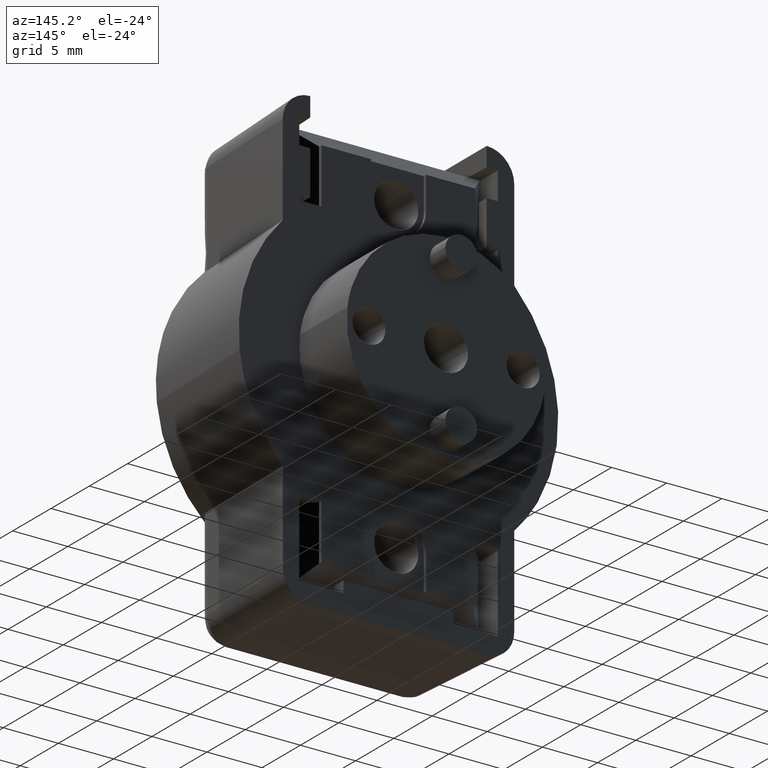
[diagram: clean part render]
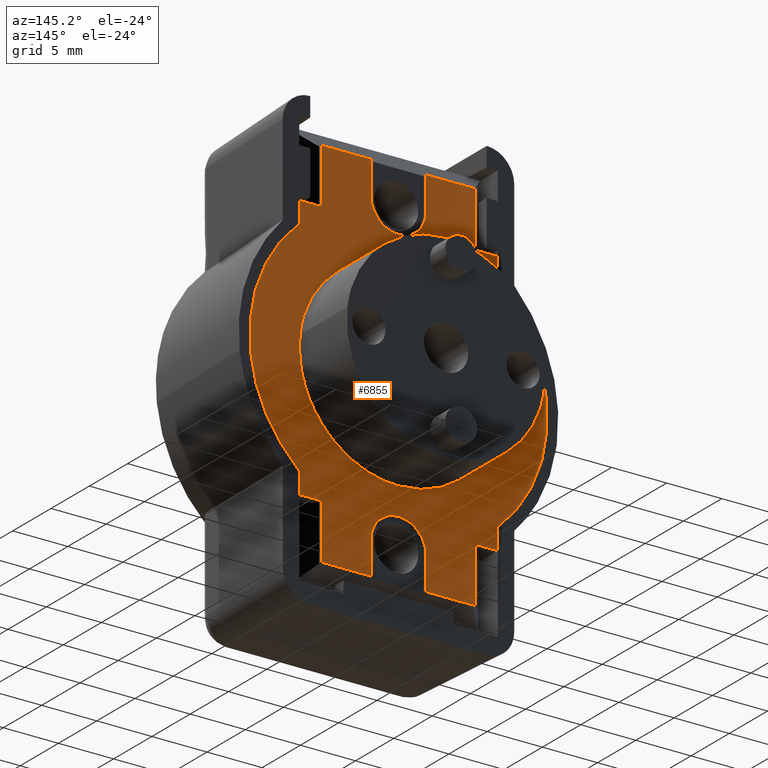
[diagram: same view with one face highlighted and labeled with its STEP entity id]
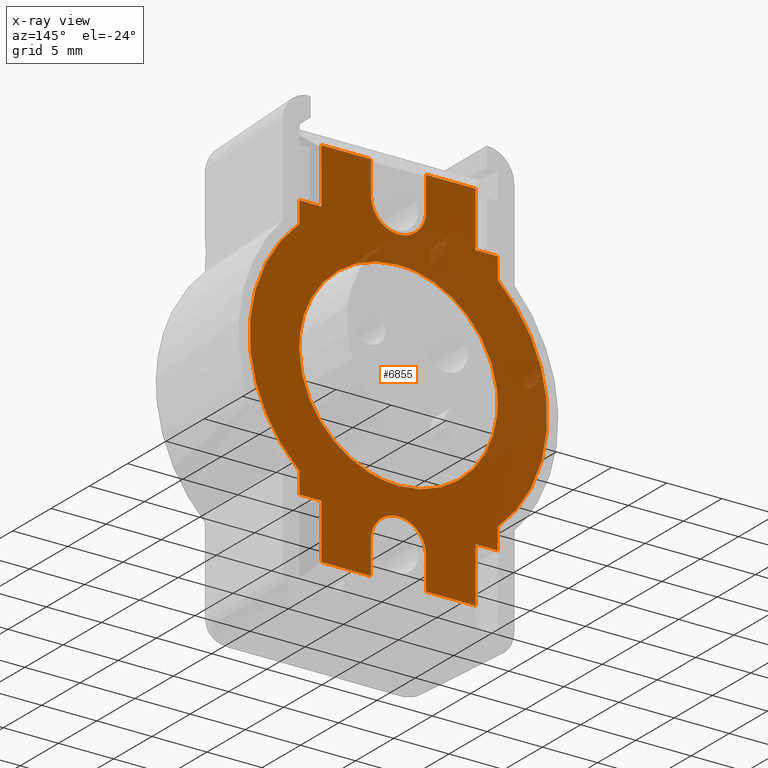
[diagram: x-ray of the same camera — body ghosted, the highlighted face saturated]
A machine part, auxiliary view. The second image highlights one B-rep face of the part: STEP entity #6855.
The next image is the same camera in x-ray: the body ghosted, the highlighted face saturated — about 23% of this face is hidden behind the body in this view.
In plain terms, the highlighted face is a freeform B-spline surface patch.
Its self-contained STEP definition (entity closure, byte-faithful):
#5027=CARTESIAN_POINT('',(5.801229E-017,-8.930397765367744,1.117137302257335));
#5028=VERTEX_POINT('',#5027);
#5034=CARTESIAN_POINT('',(0.0,0.0,9.0));
#5035=VERTEX_POINT('',#5034);
#5036=CARTESIAN_POINT('',(5.801229E-017,-8.930397765367744,1.117137302257335));
#5037=CARTESIAN_POINT('',(0.0,-7.944300594840585,9.0));
#5038=CARTESIAN_POINT('',(0.0,0.0,9.0));
#5046=(BOUNDED_CURVE()B_SPLINE_CURVE(2,(#5036,#5037,#5038),.UNSPECIFIED.,.F.,.U.)B_SPLINE_CURVE_WITH_KNOTS((3,3),(0.271473651057892,0.500000000000000),.UNSPECIFIED.)CURVE()GEOMETRIC_REPRESENTATION_ITEM()RATIONAL_B_SPLINE_CURVE((0.954005969596762,0.732264728298638,1.0))REPRESENTATION_ITEM(''));
#5047=EDGE_CURVE('',#5028,#5035,#5046,.T.);
#5049=CARTESIAN_POINT('',(-1.734723E-016,8.999657329836852,-0.078536268737992));
#5050=VERTEX_POINT('',#5049);
#5051=CARTESIAN_POINT('',(0.0,0.0,9.0));
#5052=CARTESIAN_POINT('',(0.0,9.0,9.0));
#5053=CARTESIAN_POINT('',(0.0,9.0,-3.944305E-031));
#5054=CARTESIAN_POINT('',(0.0,8.999999999999998,-0.039268881939786));
#5055=CARTESIAN_POINT('',(-1.734723E-016,8.999657329836852,-0.078536268737992));
#5063=(BOUNDED_CURVE()B_SPLINE_CURVE(2,(#5051,#5052,#5053,#5054,#5055),.UNSPECIFIED.,.F.,.U.)B_SPLINE_CURVE_WITH_KNOTS((3,2,3),(0.500000000000000,0.750000000000000,0.751539844411336),.UNSPECIFIED.)CURVE()GEOMETRIC_REPRESENTATION_ITEM()RATIONAL_B_SPLINE_CURVE((1.0,0.707106781186547,1.0,0.998195960055568,0.996414143637746))REPRESENTATION_ITEM(''));
#5064=EDGE_CURVE('',#5035,#5050,#5063,.T.);
#5144=CARTESIAN_POINT('',(0.0,0.0,-9.0));
#5145=VERTEX_POINT('',#5144);
#5146=CARTESIAN_POINT('',(-1.734723E-016,8.999657329836852,-0.078536268737992));
#5147=CARTESIAN_POINT('',(0.0,8.921803424132195,-9.0));
#5148=CARTESIAN_POINT('',(0.0,0.0,-9.0));
#5156=(BOUNDED_CURVE()B_SPLINE_CURVE(2,(#5146,#5147,#5148),.UNSPECIFIED.,.F.,.U.)B_SPLINE_CURVE_WITH_KNOTS((3,3),(0.751539844411335,1.0),.UNSPECIFIED.)CURVE()GEOMETRIC_REPRESENTATION_ITEM()RATIONAL_B_SPLINE_CURVE((0.996414143637747,0.708910821130979,1.0))REPRESENTATION_ITEM(''));
#5157=EDGE_CURVE('',#5050,#5145,#5156,.T.);
#5159=CARTESIAN_POINT('',(0.0,0.0,-9.0));
#5160=CARTESIAN_POINT('',(0.0,-9.0,-9.0));
#5161=CARTESIAN_POINT('',(0.0,-9.0,-3.944305E-031));
#5162=CARTESIAN_POINT('',(0.0,-9.0,0.560736903435709));
#5163=CARTESIAN_POINT('',(5.801229E-017,-8.930397765367744,1.117137302257335));
#5171=(BOUNDED_CURVE()B_SPLINE_CURVE(2,(#5159,#5160,#5161,#5162,#5163),.UNSPECIFIED.,.F.,.U.)B_SPLINE_CURVE_WITH_KNOTS((3,2,3),(0.0,0.250000000000000,0.271473651057892),.UNSPECIFIED.)CURVE()GEOMETRIC_REPRESENTATION_ITEM()RATIONAL_B_SPLINE_CURVE((1.0,0.707106781186547,1.0,0.974842052887909,0.954005969596762))REPRESENTATION_ITEM(''));
#5172=EDGE_CURVE('',#5145,#5028,#5171,.T.);
#5557=CARTESIAN_POINT('',(0.0,7.0,12.0));
#5558=VERTEX_POINT('',#5557);
#5571=CARTESIAN_POINT('',(1.110223E-013,9.0,12.0));
#5572=VERTEX_POINT('',#5571);
#5578=CARTESIAN_POINT('',(0.0,7.0,12.0));
#5579=CARTESIAN_POINT('',(1.110223E-013,9.0,12.0));
#5580=QUASI_UNIFORM_CURVE('',1,(#5578,#5579),.UNSPECIFIED.,.F.,.U.);
#5581=EDGE_CURVE('',#5558,#5572,#5580,.T.);
#5591=CARTESIAN_POINT('',(0.0,7.0,17.0));
#5592=VERTEX_POINT('',#5591);
#5606=CARTESIAN_POINT('',(0.0,7.0,17.0));
#5607=CARTESIAN_POINT('',(0.0,7.0,12.0));
#5608=QUASI_UNIFORM_CURVE('',1,(#5606,#5607),.UNSPECIFIED.,.F.,.U.);
#5609=EDGE_CURVE('',#5592,#5558,#5608,.T.);
#5641=CARTESIAN_POINT('',(0.0,-7.0,12.0));
#5642=VERTEX_POINT('',#5641);
#5643=CARTESIAN_POINT('',(1.110223E-013,-9.0,12.0));
#5644=VERTEX_POINT('',#5643);
#5645=CARTESIAN_POINT('',(0.0,-7.0,12.0));
#5646=CARTESIAN_POINT('',(1.110223E-013,-9.0,12.0));
#5647=QUASI_UNIFORM_CURVE('',1,(#5645,#5646),.UNSPECIFIED.,.F.,.U.);
#5648=EDGE_CURVE('',#5642,#5644,#5647,.T.);
#5685=CARTESIAN_POINT('',(0.0,-7.0,17.0));
#5686=VERTEX_POINT('',#5685);
#5692=CARTESIAN_POINT('',(0.0,-7.0,12.0));
#5693=CARTESIAN_POINT('',(0.0,-7.0,17.0));
#5694=QUASI_UNIFORM_CURVE('',1,(#5692,#5693),.UNSPECIFIED.,.F.,.U.);
#5695=EDGE_CURVE('',#5642,#5686,#5694,.T.);
#5729=CARTESIAN_POINT('',(0.0,-7.0,-12.0));
#5730=VERTEX_POINT('',#5729);
#5743=CARTESIAN_POINT('',(1.110223E-013,-9.0,-12.0));
#5744=VERTEX_POINT('',#5743);
#5750=CARTESIAN_POINT('',(0.0,-7.0,-12.0));
#5751=CARTESIAN_POINT('',(1.110223E-013,-9.0,-12.0));
#5752=QUASI_UNIFORM_CURVE('',1,(#5750,#5751),.UNSPECIFIED.,.F.,.U.);
#5753=EDGE_CURVE('',#5730,#5744,#5752,.T.);
#5765=CARTESIAN_POINT('',(0.0,-7.0,-17.0));
#5766=VERTEX_POINT('',#5765);
#5778=CARTESIAN_POINT('',(0.0,-7.0,-17.0));
#5779=CARTESIAN_POINT('',(0.0,-7.0,-12.0));
#5780=QUASI_UNIFORM_CURVE('',1,(#5778,#5779),.UNSPECIFIED.,.F.,.U.);
#5781=EDGE_CURVE('',#5766,#5730,#5780,.T.);
#5813=CARTESIAN_POINT('',(0.0,7.0,-12.0));
#5814=VERTEX_POINT('',#5813);
#5815=CARTESIAN_POINT('',(1.110223E-013,9.0,-12.0));
#5816=VERTEX_POINT('',#5815);
#5817=CARTESIAN_POINT('',(0.0,7.0,-12.0));
#5818=CARTESIAN_POINT('',(1.110223E-013,9.0,-12.0));
#5819=QUASI_UNIFORM_CURVE('',1,(#5817,#5818),.UNSPECIFIED.,.F.,.U.);
#5820=EDGE_CURVE('',#5814,#5816,#5819,.T.);
#5857=CARTESIAN_POINT('',(0.0,7.0,-17.0));
#5858=VERTEX_POINT('',#5857);
#5864=CARTESIAN_POINT('',(0.0,7.0,-12.0));
#5865=CARTESIAN_POINT('',(0.0,7.0,-17.0));
#5866=QUASI_UNIFORM_CURVE('',1,(#5864,#5865),.UNSPECIFIED.,.F.,.U.);
#5867=EDGE_CURVE('',#5814,#5858,#5866,.T.);
#5899=CARTESIAN_POINT('',(0.0,2.500000000000000,17.0));
#5900=VERTEX_POINT('',#5899);
#5908=CARTESIAN_POINT('',(0.0,2.500000000000000,14.0));
#5909=VERTEX_POINT('',#5908);
#5910=CARTESIAN_POINT('',(0.0,2.500000000000000,14.0));
#5911=CARTESIAN_POINT('',(0.0,2.500000000000000,17.0));
#5912=QUASI_UNIFORM_CURVE('',1,(#5910,#5911),.UNSPECIFIED.,.F.,.U.);
#5913=EDGE_CURVE('',#5909,#5900,#5912,.T.);
#5937=CARTESIAN_POINT('',(1.110223E-013,-2.500000000000000,17.0));
#5938=VERTEX_POINT('',#5937);
#5951=CARTESIAN_POINT('',(0.0,-2.500000000000000,14.0));
#5952=VERTEX_POINT('',#5951);
#5958=CARTESIAN_POINT('',(1.110223E-013,-2.500000000000000,17.0));
#5959=CARTESIAN_POINT('',(0.0,-2.500000000000000,14.0));
#5960=QUASI_UNIFORM_CURVE('',1,(#5958,#5959),.UNSPECIFIED.,.F.,.U.);
#5961=EDGE_CURVE('',#5938,#5952,#5960,.T.);
#5984=CARTESIAN_POINT('',(0.0,2.500000000000000,14.0));
#5985=CARTESIAN_POINT('',(0.0,2.500000000000000,11.500000000000000));
#5986=CARTESIAN_POINT('',(0.0,0.0,11.500000000000000));
#5987=CARTESIAN_POINT('',(0.0,-2.500000000000000,11.500000000000000));
#5988=CARTESIAN_POINT('',(0.0,-2.500000000000000,14.0));
#5996=(BOUNDED_CURVE()B_SPLINE_CURVE(2,(#5984,#5985,#5986,#5987,#5988),.UNSPECIFIED.,.F.,.U.)B_SPLINE_CURVE_WITH_KNOTS((3,2,3),(0.0,0.500000000000000,1.0),.UNSPECIFIED.)CURVE()GEOMETRIC_REPRESENTATION_ITEM()RATIONAL_B_SPLINE_CURVE((1.0,0.707106781186548,1.0,0.707106781186548,1.0))REPRESENTATION_ITEM(''));
#5997=EDGE_CURVE('',#5909,#5952,#5996,.T.);
#6059=CARTESIAN_POINT('',(0.0,-2.500000000000000,-14.0));
#6060=VERTEX_POINT('',#6059);
#6061=CARTESIAN_POINT('',(0.0,2.500000000000000,-14.0));
#6062=VERTEX_POINT('',#6061);
#6063=CARTESIAN_POINT('',(0.0,-2.500000000000007,-14.0));
#6064=CARTESIAN_POINT('',(0.0,-2.500000000000007,-11.500000000000000));
#6065=CARTESIAN_POINT('',(0.0,-7.105427E-015,-11.500000000000000));
#6066=CARTESIAN_POINT('',(0.0,2.499999999999993,-11.500000000000000));
#6067=CARTESIAN_POINT('',(0.0,2.499999999999993,-14.0));
#6075=(BOUNDED_CURVE()B_SPLINE_CURVE(2,(#6063,#6064,#6065,#6066,#6067),.UNSPECIFIED.,.F.,.U.)B_SPLINE_CURVE_WITH_KNOTS((3,2,3),(0.0,0.500000000000000,1.0),.UNSPECIFIED.)CURVE()GEOMETRIC_REPRESENTATION_ITEM()RATIONAL_B_SPLINE_CURVE((1.0,0.707106781186548,1.0,0.707106781186548,1.0))REPRESENTATION_ITEM(''));
#6076=EDGE_CURVE('',#6060,#6062,#6075,.T.);
#6142=CARTESIAN_POINT('',(0.0,9.0,10.062305898749040));
#6143=VERTEX_POINT('',#6142);
#6144=CARTESIAN_POINT('',(0.0,9.0,-10.062305898749059));
#6145=VERTEX_POINT('',#6144);
#6146=CARTESIAN_POINT('',(0.0,9.000000000000007,10.062305898749051));
#6147=CARTESIAN_POINT('',(0.0,13.500000000000000,6.037383539249429));
#6148=CARTESIAN_POINT('',(0.0,13.500000000000000,-3.944305E-031));
#6149=CARTESIAN_POINT('',(0.0,13.500000000000000,-6.037383539249436));
#6150=CARTESIAN_POINT('',(0.0,8.999999999999995,-10.062305898749059));
#6158=(BOUNDED_CURVE()B_SPLINE_CURVE(2,(#6146,#6147,#6148,#6149,#6150),.UNSPECIFIED.,.F.,.U.)B_SPLINE_CURVE_WITH_KNOTS((3,2,3),(0.0,0.500000000000000,1.0),.UNSPECIFIED.)CURVE()GEOMETRIC_REPRESENTATION_ITEM()RATIONAL_B_SPLINE_CURVE((1.0,0.912870929175277,1.0,0.912870929175277,1.0))REPRESENTATION_ITEM(''));
#6159=EDGE_CURVE('',#6143,#6145,#6158,.T.);
#6207=CARTESIAN_POINT('',(0.0,-9.0,-10.062305898749040));
#6208=VERTEX_POINT('',#6207);
#6209=CARTESIAN_POINT('',(0.0,-9.0,10.062305898749040));
#6210=VERTEX_POINT('',#6209);
#6211=CARTESIAN_POINT('',(0.0,-9.000000000000004,-10.062305898749051));
#6212=CARTESIAN_POINT('',(0.0,-13.500000000000002,-6.037383539249429));
#6213=CARTESIAN_POINT('',(0.0,-13.500000000000000,3.944305E-031));
#6214=CARTESIAN_POINT('',(0.0,-13.500000000000002,6.037383539249425));
#6215=CARTESIAN_POINT('',(0.0,-9.000000000000007,10.062305898749051));
#6223=(BOUNDED_CURVE()B_SPLINE_CURVE(2,(#6211,#6212,#6213,#6214,#6215),.UNSPECIFIED.,.F.,.U.)B_SPLINE_CURVE_WITH_KNOTS((3,2,3),(0.0,0.500000000000000,1.0),.UNSPECIFIED.)CURVE()GEOMETRIC_REPRESENTATION_ITEM()RATIONAL_B_SPLINE_CURVE((1.0,0.912870929175277,1.0,0.912870929175277,1.0))REPRESENTATION_ITEM(''));
#6224=EDGE_CURVE('',#6208,#6210,#6223,.T.);
#6523=CARTESIAN_POINT('',(1.110223E-013,2.500000000000000,-17.0));
#6524=VERTEX_POINT('',#6523);
#6536=CARTESIAN_POINT('',(0.0,2.500000000000000,-14.0));
#6537=CARTESIAN_POINT('',(1.110223E-013,2.500000000000000,-17.0));
#6538=QUASI_UNIFORM_CURVE('',1,(#6536,#6537),.UNSPECIFIED.,.F.,.U.);
#6539=EDGE_CURVE('',#6062,#6524,#6538,.T.);
#6549=CARTESIAN_POINT('',(1.110223E-013,-2.500000000000000,-17.0));
#6550=VERTEX_POINT('',#6549);
#6558=CARTESIAN_POINT('',(1.110223E-013,-2.500000000000000,-17.0));
#6559=CARTESIAN_POINT('',(0.0,-2.500000000000000,-14.0));
#6560=QUASI_UNIFORM_CURVE('',1,(#6558,#6559),.UNSPECIFIED.,.F.,.U.);
#6561=EDGE_CURVE('',#6550,#6060,#6560,.T.);
#6631=CARTESIAN_POINT('',(0.0,7.0,-17.0));
#6632=CARTESIAN_POINT('',(1.110223E-013,2.500000000000000,-17.0));
#6633=QUASI_UNIFORM_CURVE('',1,(#6631,#6632),.UNSPECIFIED.,.F.,.U.);
#6634=EDGE_CURVE('',#5858,#6524,#6633,.T.);
#6653=CARTESIAN_POINT('',(1.110223E-013,9.0,-12.0));
#6654=CARTESIAN_POINT('',(0.0,9.0,-10.062305898749059));
#6655=QUASI_UNIFORM_CURVE('',1,(#6653,#6654),.UNSPECIFIED.,.F.,.U.);
#6656=EDGE_CURVE('',#5816,#6145,#6655,.T.);
#6680=CARTESIAN_POINT('',(1.110223E-013,-2.500000000000000,-17.0));
#6681=CARTESIAN_POINT('',(0.0,-7.0,-17.0));
#6682=QUASI_UNIFORM_CURVE('',1,(#6680,#6681),.UNSPECIFIED.,.F.,.U.);
#6683=EDGE_CURVE('',#6550,#5766,#6682,.T.);
#6703=CARTESIAN_POINT('',(0.0,-9.0,-10.062305898749040));
#6704=CARTESIAN_POINT('',(1.110223E-013,-9.0,-12.0));
#6705=QUASI_UNIFORM_CURVE('',1,(#6703,#6704),.UNSPECIFIED.,.F.,.U.);
#6706=EDGE_CURVE('',#6208,#5744,#6705,.T.);
#6740=CARTESIAN_POINT('',(1.110223E-013,-2.500000000000000,17.0));
#6741=CARTESIAN_POINT('',(0.0,-7.0,17.0));
#6742=QUASI_UNIFORM_CURVE('',1,(#6740,#6741),.UNSPECIFIED.,.F.,.U.);
#6743=EDGE_CURVE('',#5938,#5686,#6742,.T.);
#6755=CARTESIAN_POINT('',(1.110223E-013,-9.0,12.0));
#6756=CARTESIAN_POINT('',(0.0,-9.0,10.062305898749040));
#6757=QUASI_UNIFORM_CURVE('',1,(#6755,#6756),.UNSPECIFIED.,.F.,.U.);
#6758=EDGE_CURVE('',#5644,#6210,#6757,.T.);
#6772=CARTESIAN_POINT('',(0.0,7.0,17.0));
#6773=CARTESIAN_POINT('',(0.0,2.500000000000000,17.0));
#6774=QUASI_UNIFORM_CURVE('',1,(#6772,#6773),.UNSPECIFIED.,.F.,.U.);
#6775=EDGE_CURVE('',#5592,#5900,#6774,.T.);
#6795=CARTESIAN_POINT('',(0.0,9.0,10.062305898749040));
#6796=CARTESIAN_POINT('',(1.110223E-013,9.0,12.0));
#6797=QUASI_UNIFORM_CURVE('',1,(#6795,#6796),.UNSPECIFIED.,.F.,.U.);
#6798=EDGE_CURVE('',#6143,#5572,#6797,.T.);
#6818=CARTESIAN_POINT('',(0.0,14.848649947668759,18.698299934101399));
#6819=CARTESIAN_POINT('',(0.0,-14.848650671865190,18.698299934101399));
#6820=CARTESIAN_POINT('',(0.0,14.848649947668759,-18.698300846052469));
#6821=CARTESIAN_POINT('',(0.0,-14.848650671865190,-18.698300846052469));
#6822=B_SPLINE_SURFACE_WITH_KNOTS('',1,1,((#6818,#6820),(#6819,#6821)),.UNSPECIFIED.,.F.,.F.,.U.,(2,2),(2,2),(0.0,29.697300619533952),(0.0,37.396600780153882),.UNSPECIFIED.);
#6823=ORIENTED_EDGE('',*,*,#6775,.F.);
#6824=ORIENTED_EDGE('',*,*,#5609,.T.);
#6825=ORIENTED_EDGE('',*,*,#5581,.T.);
#6826=ORIENTED_EDGE('',*,*,#6798,.F.);
#6827=ORIENTED_EDGE('',*,*,#6159,.T.);
#6828=ORIENTED_EDGE('',*,*,#6656,.F.);
#6829=ORIENTED_EDGE('',*,*,#5820,.F.);
#6830=ORIENTED_EDGE('',*,*,#5867,.T.);
#6831=ORIENTED_EDGE('',*,*,#6634,.T.);
#6832=ORIENTED_EDGE('',*,*,#6539,.F.);
#6833=ORIENTED_EDGE('',*,*,#6076,.F.);
#6834=ORIENTED_EDGE('',*,*,#6561,.F.);
#6835=ORIENTED_EDGE('',*,*,#6683,.T.);
#6836=ORIENTED_EDGE('',*,*,#5781,.T.);
#6837=ORIENTED_EDGE('',*,*,#5753,.T.);
#6838=ORIENTED_EDGE('',*,*,#6706,.F.);
#6839=ORIENTED_EDGE('',*,*,#6224,.T.);
#6840=ORIENTED_EDGE('',*,*,#6758,.F.);
#6841=ORIENTED_EDGE('',*,*,#5648,.F.);
#6842=ORIENTED_EDGE('',*,*,#5695,.T.);
#6843=ORIENTED_EDGE('',*,*,#6743,.F.);
#6844=ORIENTED_EDGE('',*,*,#5961,.T.);
#6845=ORIENTED_EDGE('',*,*,#5997,.F.);
#6846=ORIENTED_EDGE('',*,*,#5913,.T.);
#6847=EDGE_LOOP('',(#6823,#6824,#6825,#6826,#6827,#6828,#6829,#6830,#6831,#6832,#6833,#6834,#6835,#6836,#6837,#6838,#6839,#6840,#6841,#6842,#6843,#6844,#6845,#6846));
#6848=FACE_OUTER_BOUND('',#6847,.T.);
#6849=ORIENTED_EDGE('',*,*,#5064,.F.);
#6850=ORIENTED_EDGE('',*,*,#5047,.F.);
#6851=ORIENTED_EDGE('',*,*,#5172,.F.);
#6852=ORIENTED_EDGE('',*,*,#5157,.F.);
#6853=EDGE_LOOP('',(#6849,#6850,#6851,#6852));
#6854=FACE_BOUND('',#6853,.T.);
#6855=ADVANCED_FACE('',(#6848,#6854),#6822,.F.);